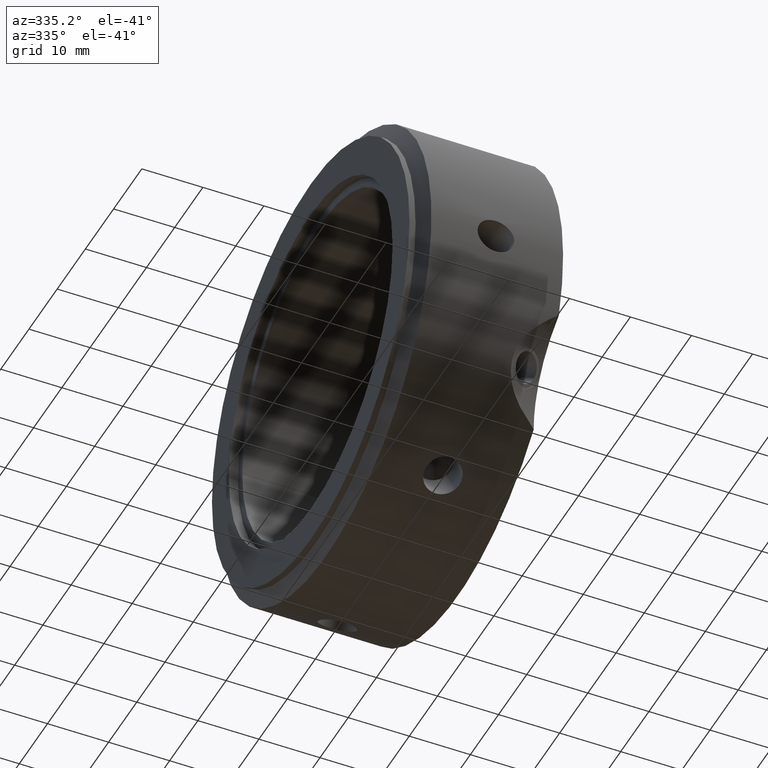
[diagram: clean part render]
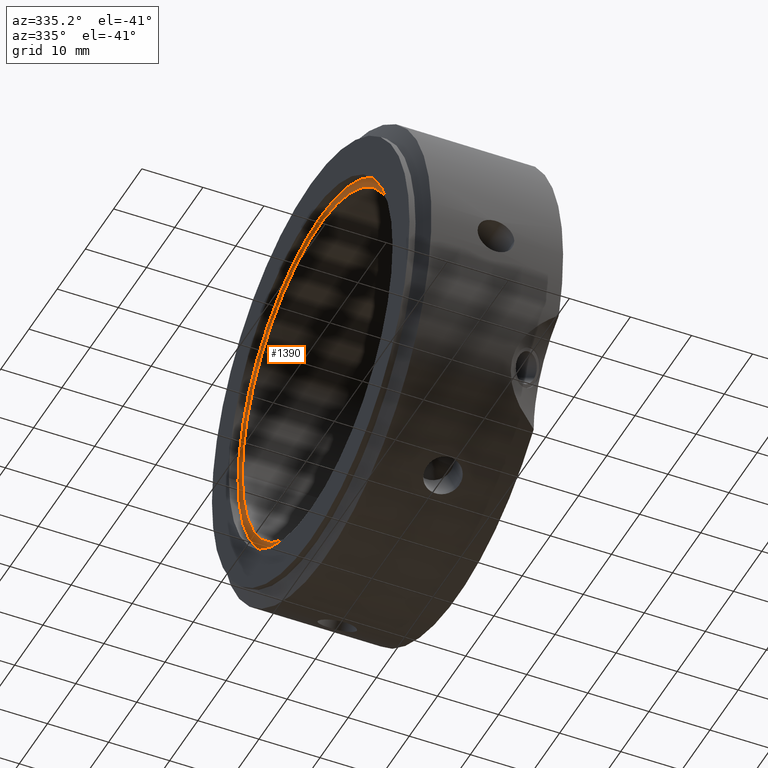
[diagram: same view with one face highlighted and labeled with its STEP entity id]
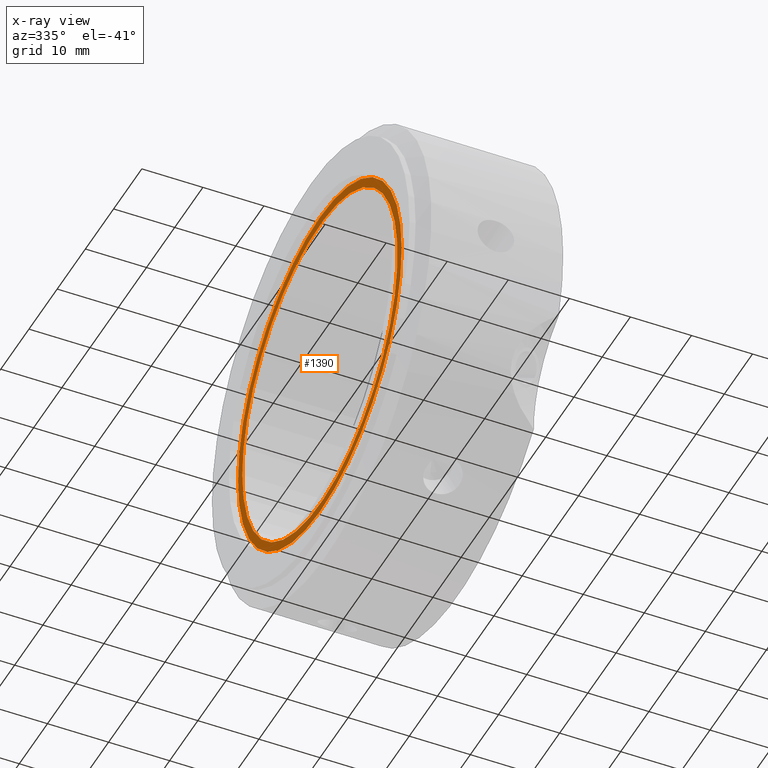
[diagram: x-ray of the same camera — body ghosted, the highlighted face saturated]
A machine part, auxiliary view. The second image highlights one B-rep face of the part: STEP entity #1390.
The next image is the same camera in x-ray: the body ghosted, the highlighted face saturated — about 0% of this face is hidden behind the body in this view.
In plain terms, the highlighted planar face has unit normal (-1, 0, 0).
Its self-contained STEP definition (entity closure, byte-faithful):
#1363=CARTESIAN_POINT('',(1.499999999999992,28.25,0.0));
#1364=DIRECTION('',(-1.0,0.0,0.0));
#1365=DIRECTION('',(0.0,0.0,1.0));
#1366=AXIS2_PLACEMENT_3D('',#1363,#1364,#1365);
#1367=PLANE('',#1366);
#1368=CARTESIAN_POINT('',(1.499999999999992,29.000000000000004,0.0));
#1369=VERTEX_POINT('',#1368);
#1370=CARTESIAN_POINT('',(1.499999999999992,0.0,0.0));
#1371=DIRECTION('',(1.0,0.0,0.0));
#1372=DIRECTION('',(0.0,1.0,0.0));
#1373=AXIS2_PLACEMENT_3D('',#1370,#1371,#1372);
#1374=CIRCLE('',#1373,29.000000000000004);
#1375=EDGE_CURVE('',#1369,#1369,#1374,.T.);
#1376=ORIENTED_EDGE('',*,*,#1375,.F.);
#1377=EDGE_LOOP('',(#1376));
#1378=FACE_OUTER_BOUND('',#1377,.T.);
#1379=CARTESIAN_POINT('',(1.499999999999992,27.5,0.0));
#1380=VERTEX_POINT('',#1379);
#1381=CARTESIAN_POINT('',(1.499999999999992,0.0,0.0));
#1382=DIRECTION('',(1.0,0.0,0.0));
#1383=DIRECTION('',(0.0,1.0,0.0));
#1384=AXIS2_PLACEMENT_3D('',#1381,#1382,#1383);
#1385=CIRCLE('',#1384,27.5);
#1386=EDGE_CURVE('',#1380,#1380,#1385,.T.);
#1387=ORIENTED_EDGE('',*,*,#1386,.T.);
#1388=EDGE_LOOP('',(#1387));
#1389=FACE_BOUND('',#1388,.T.);
#1390=ADVANCED_FACE('',(#1378,#1389),#1367,.T.);